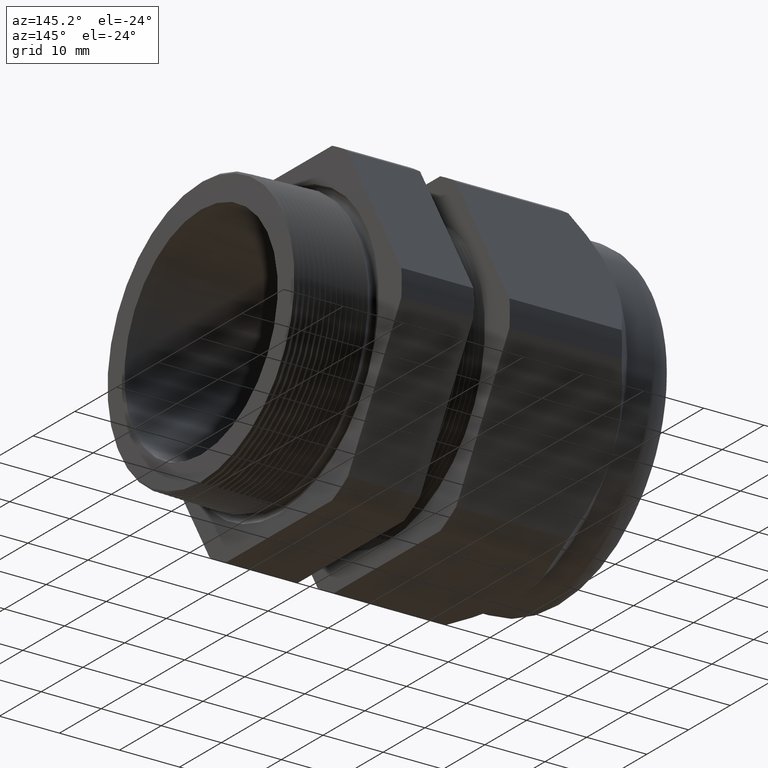
[diagram: clean part render]
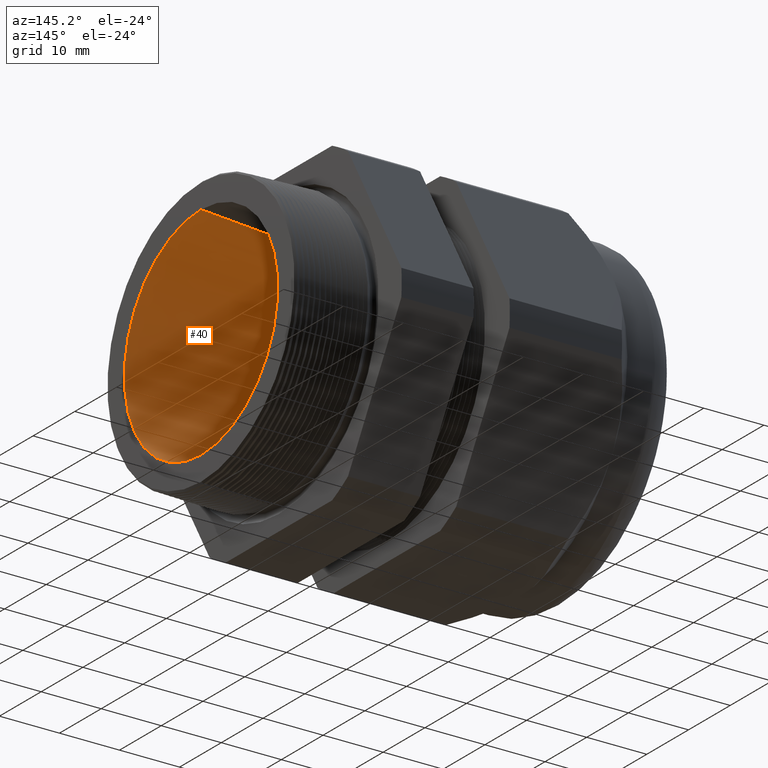
[diagram: same view with one face highlighted and labeled with its STEP entity id]
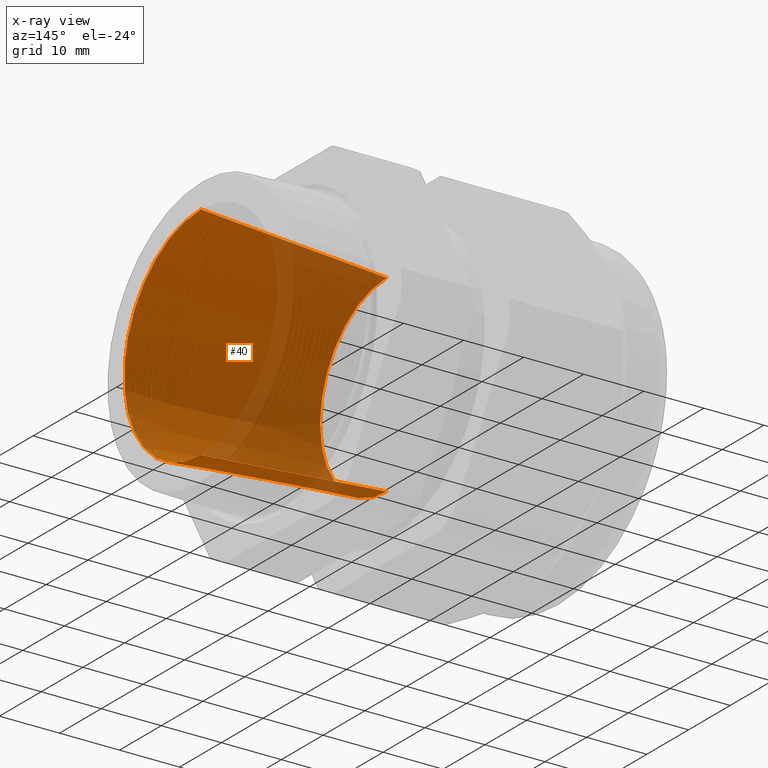
[diagram: x-ray of the same camera — body ghosted, the highlighted face saturated]
A machine part, auxiliary view. The second image highlights one B-rep face of the part: STEP entity #40.
The next image is the same camera in x-ray: the body ghosted, the highlighted face saturated — about 40% of this face is hidden behind the body in this view.
In plain terms, the highlighted conical surface has half-angle 4.367 deg.
Its self-contained STEP definition (entity closure, byte-faithful):
#4 = EDGE_LOOP ( 'NONE', ( #34, #30, #32, #146 ) ) ;
#29 = VERTEX_POINT ( 'NONE', #1591 ) ;
#30 = ORIENTED_EDGE ( 'NONE', *, *, #35, .T. ) ;
#31 = VERTEX_POINT ( 'NONE', #1590 ) ;
#32 = ORIENTED_EDGE ( 'NONE', *, *, #36, .T. ) ;
#33 = VERTEX_POINT ( 'NONE', #1589 ) ;
#34 = ORIENTED_EDGE ( 'NONE', *, *, #38, .F. ) ;
#35 = EDGE_CURVE ( 'NONE', #33, #31, #1588, .T. ) ;
#36 = EDGE_CURVE ( 'NONE', #31, #37, #1584, .T. ) ;
#37 = VERTEX_POINT ( 'NONE', #1642 ) ;
#38 = EDGE_CURVE ( 'NONE', #33, #29, #1640, .T. ) ;
#40 = ADVANCED_FACE ( 'NONE', ( #1641 ), #1633, .F. ) ;
#145 = EDGE_CURVE ( 'NONE', #29, #37, #1852, .T. ) ;
#146 = ORIENTED_EDGE ( 'NONE', *, *, #145, .F. ) ;
#1583 = AXIS2_PLACEMENT_3D ( 'NONE', #1645, #1644, #1643 ) ;
#1584 = CIRCLE ( 'NONE', #1583, 0.7230845254709035200 ) ;
#1585 = DIRECTION ( 'NONE',  ( 0.9970962231151074800, 9.325926079895415200E-018, 0.07615196550048951300 ) ) ;
#1586 = VECTOR ( 'NONE', #1585, 39.37007874015748100 ) ;
#1587 = CARTESIAN_POINT ( 'NONE',  ( -1.018802799999999300, 7.715274834628325400E-017, 0.6300000000000000000 ) ) ;
#1588 = LINE ( 'NONE', #1587, #1586 ) ;
#1589 = CARTESIAN_POINT ( 'NONE',  ( -1.018802799999999300, 7.715274834628325400E-017, 0.6300000000000000000 ) ) ;
#1590 = CARTESIAN_POINT ( 'NONE',  ( 0.2000000000000000400, 8.855231496309249600E-017, 0.7230845254709035200 ) ) ;
#1591 = CARTESIAN_POINT ( 'NONE',  ( -1.018802799999999300, 0.0000000000000000000, -0.6300000000000000000 ) ) ;
#1630 = DIRECTION ( 'NONE',  ( 0.0000000000000000000, 0.0000000000000000000, -1.000000000000000000 ) ) ;
#1631 = DIRECTION ( 'NONE',  ( 1.000000000000000000, 0.0000000000000000000, 0.0000000000000000000 ) ) ;
#1632 = AXIS2_PLACEMENT_3D ( 'NONE', #1635, #1631, #1630 ) ;
#1633 = CONICAL_SURFACE ( 'NONE', #1632, 0.6300000000000000000, 0.07622576066053141100 ) ;
#1635 = CARTESIAN_POINT ( 'NONE',  ( -1.018802799999999300, 0.0000000000000000000, 0.0000000000000000000 ) ) ;
#1636 = DIRECTION ( 'NONE',  ( 0.0000000000000000000, 0.0000000000000000000, -1.000000000000000000 ) ) ;
#1637 = DIRECTION ( 'NONE',  ( 1.000000000000000000, 0.0000000000000000000, 0.0000000000000000000 ) ) ;
#1638 = CARTESIAN_POINT ( 'NONE',  ( -1.018802799999999300, 0.0000000000000000000, 0.0000000000000000000 ) ) ;
#1639 = AXIS2_PLACEMENT_3D ( 'NONE', #1638, #1637, #1636 ) ;
#1640 = CIRCLE ( 'NONE', #1639, 0.6300000000000000000 ) ;
#1641 = FACE_OUTER_BOUND ( 'NONE', #4, .T. ) ;
#1642 = CARTESIAN_POINT ( 'NONE',  ( 0.2000000000000000400, 0.0000000000000000000, -0.7230845254709035200 ) ) ;
#1643 = DIRECTION ( 'NONE',  ( 0.0000000000000000000, 0.0000000000000000000, -1.000000000000000000 ) ) ;
#1644 = DIRECTION ( 'NONE',  ( 1.000000000000000000, 0.0000000000000000000, 0.0000000000000000000 ) ) ;
#1645 = CARTESIAN_POINT ( 'NONE',  ( 0.2000000000000000400, 0.0000000000000000000, 0.0000000000000000000 ) ) ;
#1849 = DIRECTION ( 'NONE',  ( 0.9970962231151074800, 0.0000000000000000000, -0.07615196550048951300 ) ) ;
#1850 = VECTOR ( 'NONE', #1849, 39.37007874015748100 ) ;
#1851 = CARTESIAN_POINT ( 'NONE',  ( -1.018802799999999300, 0.0000000000000000000, -0.6300000000000000000 ) ) ;
#1852 = LINE ( 'NONE', #1851, #1850 ) ;